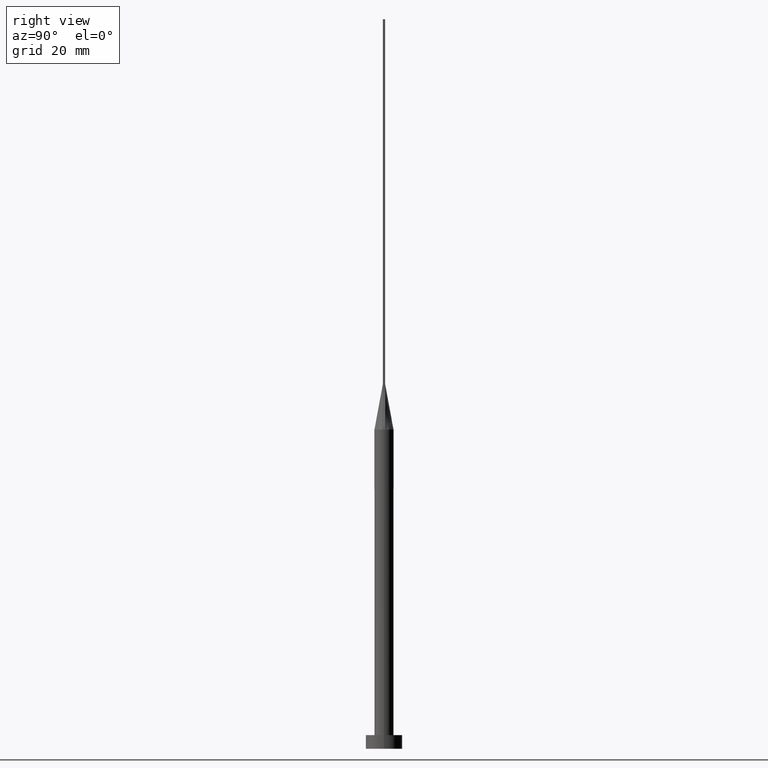
[diagram: clean part render]
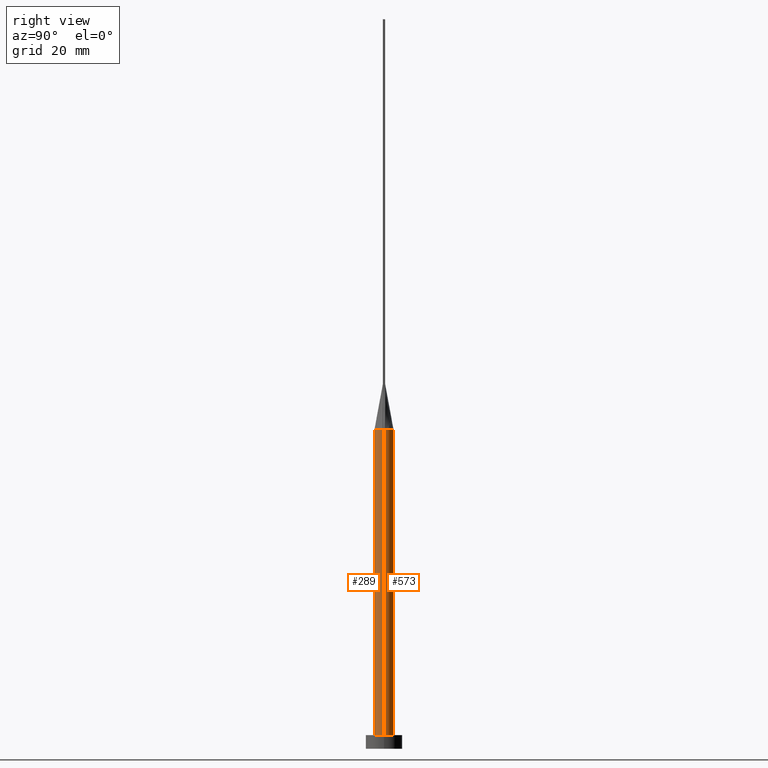
[diagram: same view with one multi-face feature highlighted, each face labeled with its STEP entity id]
A machine part, right view. The highlighted faces form ONE feature: a constant-radius fillet chain: 2 tangent blend faces with common blend radius 2.1 mm. The faces share edges in the B-rep.
Their STEP definitions:
[1] entity #289 (Cylinder):
#23 = EDGE_CURVE ( 'NONE', #487, #361, #146, .T. ) ;
#25 = VECTOR ( 'NONE', #340, 1000.000000000000000 ) ;
#37 = CARTESIAN_POINT ( 'NONE',  ( -2.099961659741046649, -5.286755615166558459E-16, 70.00000000000000000 ) ) ;
#48 = EDGE_CURVE ( 'NONE', #497, #125, #395, .T. ) ;
#82 = DIRECTION ( 'NONE',  ( -1.000000000000000000, 0.000000000000000000, 0.000000000000000000 ) ) ;
#105 = CARTESIAN_POINT ( 'NONE',  ( 2.100000000000000089, 2.571758278209441957E-16, 70.00000000000000000 ) ) ;
#120 = ORIENTED_EDGE ( 'NONE', *, *, #48, .T. ) ;
#122 = AXIS2_PLACEMENT_3D ( 'NONE', #571, #175, #126 ) ;
#125 = VERTEX_POINT ( 'NONE', #250 ) ;
#126 = DIRECTION ( 'NONE',  ( 1.000000000000000000, -2.131628207280300558E-14, 0.000000000000000000 ) ) ;
#134 = CARTESIAN_POINT ( 'NONE',  ( 2.100000000000000089, 2.571758278209441957E-16, 3.000000000000000000 ) ) ;
#138 = CARTESIAN_POINT ( 'NONE',  ( -2.082216547150284924, -0.2739753355370637133, 70.00000000000000000 ) ) ;
#146 = CIRCLE ( 'NONE', #211, 2.100000000000000089 ) ;
#152 = VERTEX_POINT ( 'NONE', #246 ) ;
#154 = EDGE_CURVE ( 'NONE', #152, #535, #332, .T. ) ;
#165 = AXIS2_PLACEMENT_3D ( 'NONE', #221, #478, #82 ) ;
#175 = DIRECTION ( 'NONE',  ( 0.000000000000000000, 0.000000000000000000, 1.000000000000000000 ) ) ;
#177 = CIRCLE ( 'NONE', #249, 2.100000000000000089 ) ;
#185 = ORIENTED_EDGE ( 'NONE', *, *, #154, .F. ) ;
#188 = DIRECTION ( 'NONE',  ( 0.000000000000000000, 0.000000000000000000, 1.000000000000000000 ) ) ;
#192 = DIRECTION ( 'NONE',  ( 1.000000000000000000, 0.000000000000000000, 0.000000000000000000 ) ) ;
#211 = AXIS2_PLACEMENT_3D ( 'NONE', #346, #219, #300 ) ;
#219 = DIRECTION ( 'NONE',  ( 0.000000000000000000, 0.000000000000000000, 1.000000000000000000 ) ) ;
#221 = CARTESIAN_POINT ( 'NONE',  ( 0.000000000000000000, 0.000000000000000000, 70.00000000000000000 ) ) ;
#228 = DIRECTION ( 'NONE',  ( 1.000000000000000000, 0.000000000000000000, 0.000000000000000000 ) ) ;
#231 = ORIENTED_EDGE ( 'NONE', *, *, #429, .F. ) ;
#232 = EDGE_LOOP ( 'NONE', ( #185, #231, #255, #402, #120, #457 ) ) ;
#246 = CARTESIAN_POINT ( 'NONE',  ( 2.099961659741046649, 5.289748680732500402E-16, 70.00000000000000000 ) ) ;
#249 = AXIS2_PLACEMENT_3D ( 'NONE', #450, #188, #192 ) ;
#250 = CARTESIAN_POINT ( 'NONE',  ( -2.100000000000000089, 0.000000000000000000, 3.000000000000000000 ) ) ;
#255 = ORIENTED_EDGE ( 'NONE', *, *, #23, .F. ) ;
#265 = EDGE_CURVE ( 'NONE', #125, #535, #177, .T. ) ;
#274 = CARTESIAN_POINT ( 'NONE',  ( 0.000000000000000000, 0.000000000000000000, 70.00000000000000000 ) ) ;
#289 = ADVANCED_FACE ( 'NONE', ( #432 ), #295, .T. ) ;
#295 = CYLINDRICAL_SURFACE ( 'NONE', #165, 2.100000000000000089 ) ;
#300 = DIRECTION ( 'NONE',  ( 1.000000000000000000, 0.000000000000000000, 0.000000000000000000 ) ) ;
#332 = LINE ( 'NONE', #105, #25 ) ;
#336 = CARTESIAN_POINT ( 'NONE',  ( 2.082216499796571085, -0.2739752411676472654, 70.00000000000000000 ) ) ;
#340 = DIRECTION ( 'NONE',  ( -0.000000000000000000, -0.000000000000000000, -1.000000000000000000 ) ) ;
#346 = CARTESIAN_POINT ( 'NONE',  ( 0.000000000000000000, 0.000000000000000000, 70.00000000000000000 ) ) ;
#361 = VERTEX_POINT ( 'NONE', #336 ) ;
#395 = LINE ( 'NONE', #570, #515 ) ;
#397 = CIRCLE ( 'NONE', #122, 2.100000000000000089 ) ;
#402 = ORIENTED_EDGE ( 'NONE', *, *, #542, .F. ) ;
#429 = EDGE_CURVE ( 'NONE', #361, #152, #397, .T. ) ;
#432 = FACE_OUTER_BOUND ( 'NONE', #232, .T. ) ;
#440 = DIRECTION ( 'NONE',  ( 0.000000000000000000, 0.000000000000000000, 1.000000000000000000 ) ) ;
#450 = CARTESIAN_POINT ( 'NONE',  ( 0.000000000000000000, 0.000000000000000000, 3.000000000000000000 ) ) ;
#457 = ORIENTED_EDGE ( 'NONE', *, *, #265, .T. ) ;
#478 = DIRECTION ( 'NONE',  ( -0.000000000000000000, -0.000000000000000000, -1.000000000000000000 ) ) ;
#487 = VERTEX_POINT ( 'NONE', #138 ) ;
#497 = VERTEX_POINT ( 'NONE', #37 ) ;
#515 = VECTOR ( 'NONE', #576, 1000.000000000000000 ) ;
#535 = VERTEX_POINT ( 'NONE', #134 ) ;
#542 = EDGE_CURVE ( 'NONE', #497, #487, #575, .T. ) ;
#560 = AXIS2_PLACEMENT_3D ( 'NONE', #274, #440, #228 ) ;
#570 = CARTESIAN_POINT ( 'NONE',  ( -2.100000000000000089, 0.000000000000000000, 70.00000000000000000 ) ) ;
#571 = CARTESIAN_POINT ( 'NONE',  ( 0.000000000000000000, 0.000000000000000000, 70.00000000000000000 ) ) ;
#575 = CIRCLE ( 'NONE', #560, 2.100000000000000089 ) ;
#576 = DIRECTION ( 'NONE',  ( -0.000000000000000000, -0.000000000000000000, -1.000000000000000000 ) ) ;
[2] entity #573 (Cylinder):
#2 = VERTEX_POINT ( 'NONE', #399 ) ;
#4 = ORIENTED_EDGE ( 'NONE', *, *, #154, .T. ) ;
#5 = CARTESIAN_POINT ( 'NONE',  ( 0.3069641454662044300, 2.100000000000000089, 70.00000000000000000 ) ) ;
#25 = VECTOR ( 'NONE', #340, 1000.000000000000000 ) ;
#37 = CARTESIAN_POINT ( 'NONE',  ( -2.099961659741046649, -5.286755615166558459E-16, 70.00000000000000000 ) ) ;
#42 = CARTESIAN_POINT ( 'NONE',  ( -1.370324685961209266, 1.611984358543462559, 70.00000000000001421 ) ) ;
#48 = EDGE_CURVE ( 'NONE', #497, #125, #395, .T. ) ;
#65 = EDGE_CURVE ( 'NONE', #535, #125, #507, .T. ) ;
#72 = CARTESIAN_POINT ( 'NONE',  ( -2.082200117151096208, 0.2739731464735293276, 70.00000000000000000 ) ) ;
#76 = CARTESIAN_POINT ( 'NONE',  ( 1.719140910005030110, 1.233222546295088762, 70.00000000000000000 ) ) ;
#80 = CARTESIAN_POINT ( 'NONE',  ( 1.144666002056102583, 1.784802689656027397, 70.00000000000000000 ) ) ;
#84 = ORIENTED_EDGE ( 'NONE', *, *, #441, .F. ) ;
#92 = DIRECTION ( 'NONE',  ( -1.000000000000000000, 0.000000000000000000, 0.000000000000000000 ) ) ;
#105 = CARTESIAN_POINT ( 'NONE',  ( 2.100000000000000089, 2.571758278209441957E-16, 70.00000000000000000 ) ) ;
#106 = EDGE_CURVE ( 'NONE', #155, #497, #537, .T. ) ;
#121 = CARTESIAN_POINT ( 'NONE',  ( -1.843490440271193798, 1.028323931880310349, 70.00000000000001421 ) ) ;
#125 = VERTEX_POINT ( 'NONE', #250 ) ;
#127 = CARTESIAN_POINT ( 'NONE',  ( -2.082200117151096208, 0.2739731464735293276, 70.00000000000000000 ) ) ;
#134 = CARTESIAN_POINT ( 'NONE',  ( 2.100000000000000089, 2.571758278209441957E-16, 3.000000000000000000 ) ) ;
#139 = CARTESIAN_POINT ( 'NONE',  ( 2.082200219287980492, 0.2739732417105839035, 70.00000000000000000 ) ) ;
#141 = CARTESIAN_POINT ( 'NONE',  ( 0.000000000000000000, 0.000000000000000000, 70.00000000000000000 ) ) ;
#152 = VERTEX_POINT ( 'NONE', #246 ) ;
#154 = EDGE_CURVE ( 'NONE', #152, #535, #332, .T. ) ;
#155 = VERTEX_POINT ( 'NONE', #72 ) ;
#158 = DIRECTION ( 'NONE',  ( 0.000000000000000000, 0.000000000000000000, 1.000000000000000000 ) ) ;
#169 = DIRECTION ( 'NONE',  ( 1.000000000000000000, 0.000000000000000000, 0.000000000000000000 ) ) ;
#170 = EDGE_CURVE ( 'NONE', #2, #155, #493, .T. ) ;
#173 = CARTESIAN_POINT ( 'NONE',  ( 0.000000000000000000, 0.000000000000000000, 70.00000000000000000 ) ) ;
#176 = CARTESIAN_POINT ( 'NONE',  ( 2.059419575438525385, 0.4459762599261217764, 70.00000000000001421 ) ) ;
#204 = DIRECTION ( 'NONE',  ( 0.000000000000000000, 0.000000000000000000, 1.000000000000000000 ) ) ;
#206 = DIRECTION ( 'NONE',  ( 1.000000000000000000, 0.000000000000000000, 0.000000000000000000 ) ) ;
#246 = CARTESIAN_POINT ( 'NONE',  ( 2.099961659741046649, 5.289748680732500402E-16, 70.00000000000000000 ) ) ;
#250 = CARTESIAN_POINT ( 'NONE',  ( -2.100000000000000089, 0.000000000000000000, 3.000000000000000000 ) ) ;
#259 = AXIS2_PLACEMENT_3D ( 'NONE', #141, #305, #92 ) ;
#260 = CARTESIAN_POINT ( 'NONE',  ( 1.370324685961209044, 1.611984358543462781, 70.00000000000001421 ) ) ;
#279 = ORIENTED_EDGE ( 'NONE', *, *, #65, .T. ) ;
#285 = ORIENTED_EDGE ( 'NONE', *, *, #170, .F. ) ;
#299 = CARTESIAN_POINT ( 'NONE',  ( -2.013179673790353341, 0.6348343983169374427, 69.99999999999998579 ) ) ;
#305 = DIRECTION ( 'NONE',  ( -0.000000000000000000, -0.000000000000000000, -1.000000000000000000 ) ) ;
#306 = CARTESIAN_POINT ( 'NONE',  ( -1.719140910005030554, 1.233222546295088762, 69.99999999999998579 ) ) ;
#332 = LINE ( 'NONE', #105, #25 ) ;
#334 = CARTESIAN_POINT ( 'NONE',  ( 0.000000000000000000, 0.000000000000000000, 70.00000000000000000 ) ) ;
#340 = DIRECTION ( 'NONE',  ( -0.000000000000000000, -0.000000000000000000, -1.000000000000000000 ) ) ;
#347 = CARTESIAN_POINT ( 'NONE',  ( -0.6126365619873356261, 2.029890967560284754, 70.00000000000001421 ) ) ;
#354 = CARTESIAN_POINT ( 'NONE',  ( -0.3069641454662043190, 2.100000000000000533, 70.00000000000001421 ) ) ;
#355 = CARTESIAN_POINT ( 'NONE',  ( 0.000000000000000000, 0.000000000000000000, 3.000000000000000000 ) ) ;
#365 = AXIS2_PLACEMENT_3D ( 'NONE', #334, #204, #472 ) ;
#366 = FACE_OUTER_BOUND ( 'NONE', #444, .T. ) ;
#379 = AXIS2_PLACEMENT_3D ( 'NONE', #355, #158, #206 ) ;
#395 = LINE ( 'NONE', #570, #515 ) ;
#399 = CARTESIAN_POINT ( 'NONE',  ( 2.082200219287980492, 0.2739732417105839035, 70.00000000000000000 ) ) ;
#409 = ORIENTED_EDGE ( 'NONE', *, *, #106, .F. ) ;
#437 = CARTESIAN_POINT ( 'NONE',  ( -2.059419575438525385, 0.4459762599261216653, 70.00000000000001421 ) ) ;
#441 = EDGE_CURVE ( 'NONE', #152, #2, #473, .T. ) ;
#444 = EDGE_LOOP ( 'NONE', ( #84, #4, #279, #530, #409, #285 ) ) ;
#472 = DIRECTION ( 'NONE',  ( 1.000000000000000000, 0.000000000000000000, 0.000000000000000000 ) ) ;
#473 = CIRCLE ( 'NONE', #552, 2.100000000000000089 ) ;
#482 = CARTESIAN_POINT ( 'NONE',  ( 1.843490440271194020, 1.028323931880309905, 69.99999999999998579 ) ) ;
#493 = B_SPLINE_CURVE_WITH_KNOTS ( 'NONE', 3,
 ( #139, #176, #529, #482, #76, #260, #80, #580, #5, #354, #347, #520, #42, #306, #121, #299, #437, #127 ),
 .UNSPECIFIED., .F., .F.,
 ( 4, 2, 2, 2, 2, 2, 2, 2, 4 ),
 ( 0.000000000000000000, 0.1250000000000000000, 0.2500000000000000000, 0.3750000000000000000, 0.5000000000000000000, 0.6250000000000000000, 0.7500000000000000000, 0.8750000000000000000, 1.000000000000000000 ),
 .UNSPECIFIED. ) ;
#497 = VERTEX_POINT ( 'NONE', #37 ) ;
#507 = CIRCLE ( 'NONE', #379, 2.100000000000000089 ) ;
#515 = VECTOR ( 'NONE', #576, 1000.000000000000000 ) ;
#520 = CARTESIAN_POINT ( 'NONE',  ( -1.144666002056102361, 1.784802689656027619, 70.00000000000001421 ) ) ;
#529 = CARTESIAN_POINT ( 'NONE',  ( 2.013179673790353341, 0.6348343983169372207, 69.99999999999998579 ) ) ;
#530 = ORIENTED_EDGE ( 'NONE', *, *, #48, .F. ) ;
#535 = VERTEX_POINT ( 'NONE', #134 ) ;
#537 = CIRCLE ( 'NONE', #365, 2.100000000000000089 ) ;
#543 = CYLINDRICAL_SURFACE ( 'NONE', #259, 2.100000000000000089 ) ;
#552 = AXIS2_PLACEMENT_3D ( 'NONE', #173, #567, #169 ) ;
#567 = DIRECTION ( 'NONE',  ( 0.000000000000000000, 0.000000000000000000, 1.000000000000000000 ) ) ;
#570 = CARTESIAN_POINT ( 'NONE',  ( -2.100000000000000089, 0.000000000000000000, 70.00000000000000000 ) ) ;
#573 = ADVANCED_FACE ( 'NONE', ( #366 ), #543, .T. ) ;
#576 = DIRECTION ( 'NONE',  ( -0.000000000000000000, -0.000000000000000000, -1.000000000000000000 ) ) ;
#580 = CARTESIAN_POINT ( 'NONE',  ( 0.6126365619873356261, 2.029890967560284754, 70.00000000000001421 ) ) ;